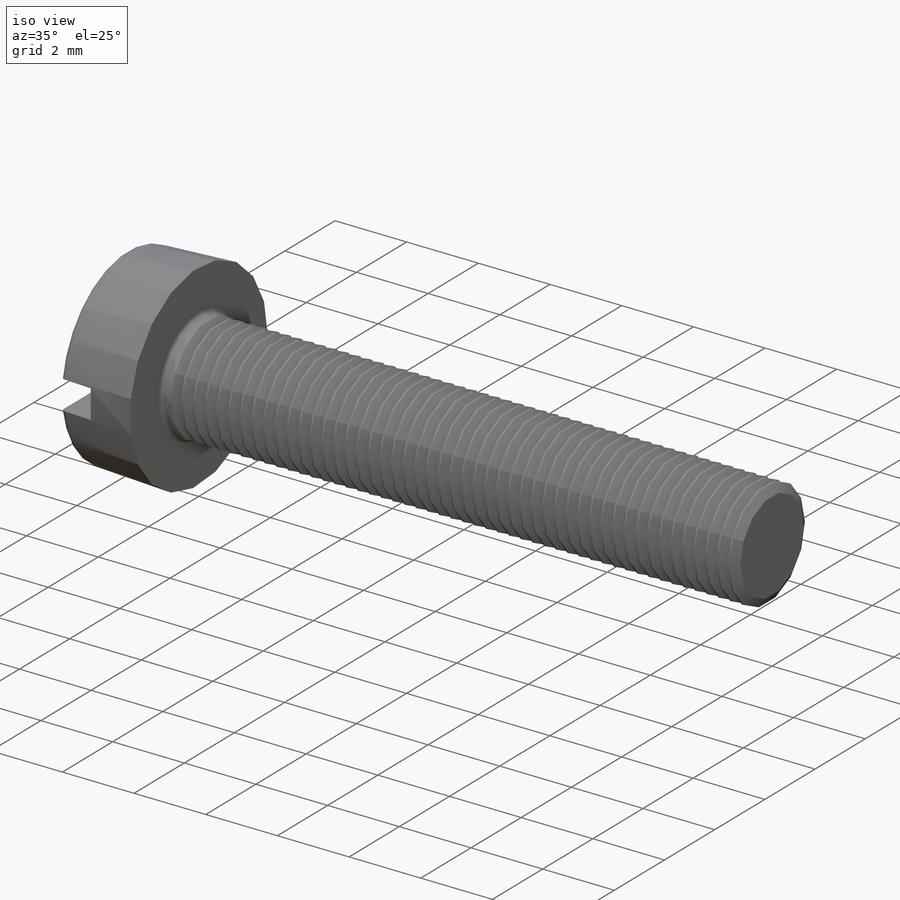
[diagram: iso view]
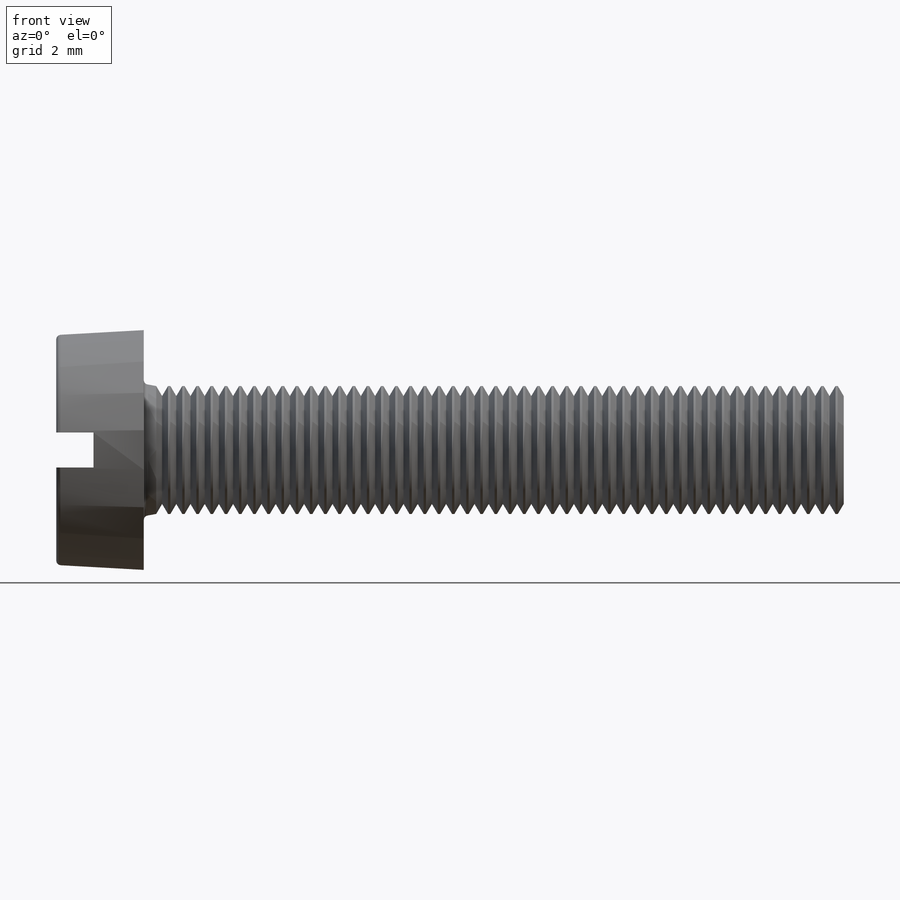
[diagram: front view]
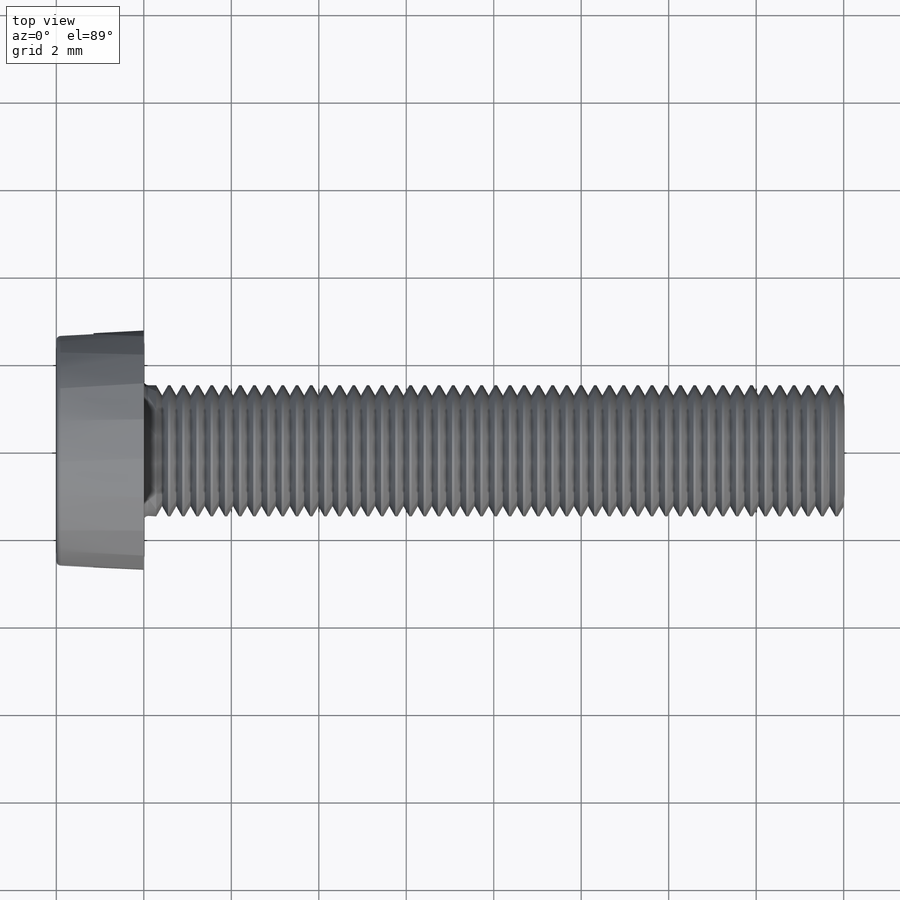
[diagram: top view]
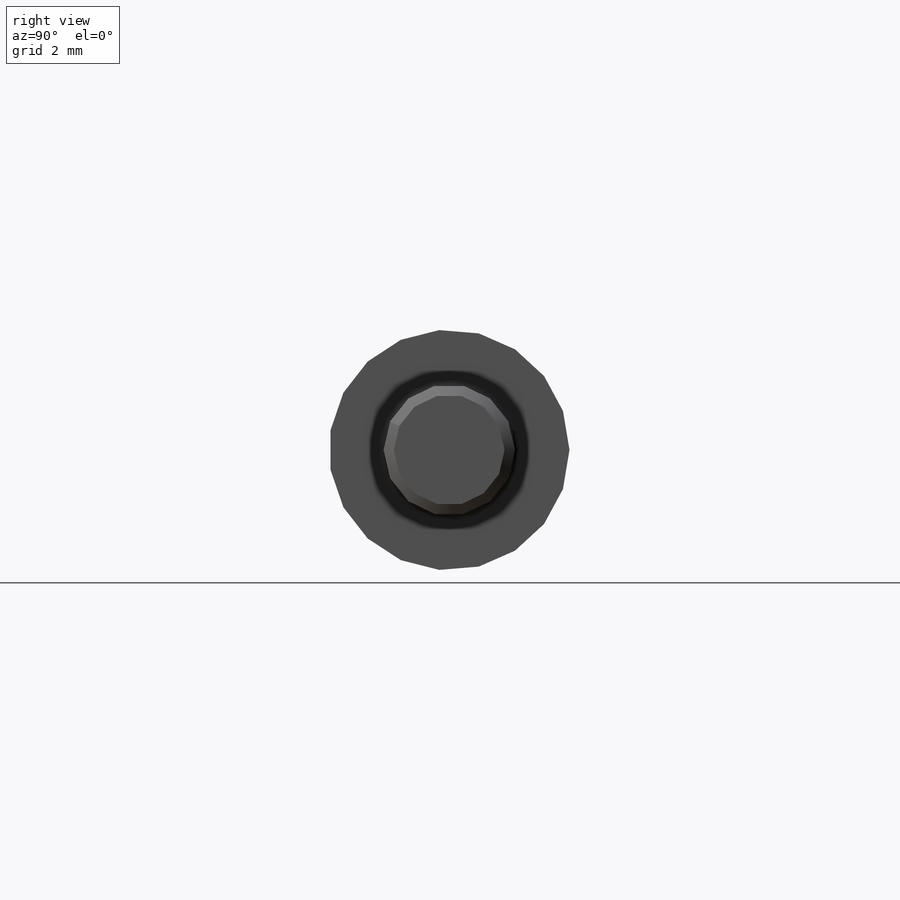
[diagram: right view]
SOLIDWORKS PART (.sldprt)
format: sldprt  version: not decoded by parser v0  size: 296,960 bytes
history: native  units: mm
features: sketch x5, extrude x2, material x1, plane x1, thread x1, cut_extrude x1, fillet x1, cut_revolve x1, pattern_linear x1 (+15 scaffold rows collapsed; 1 parser-record rows omitted)
feature tree (30):
  parser-record x1  (decoder bookkeeping rows leaked as tree rows — omitted from the tree; the rows remain in map.json)
  scaffold x15  (default folders/planes/origin — collapsed)
  material  "材质 <未指定>"
  plane  "Plane1"  Offset=2mm
  sketch  "Sketch2"  dims[dk=5.5mm]
  extrude  "BaseHead"  Depth=2mm k=2mm
  sketch  "Sketch3"  dims[d=3.0mm a=1.0mm]
  extrude  "BaseBody"  [1 undecoded]
  thread  "ThreadCosmetic1"  Diameter=16mm l=16mm  [1 undecoded]
  sketch  "Sketch4"  dims[c1.n=0.8mm c1.m=0.5mm c1.t=1.0mm c2.t=0.85mm c2.m=0.4mm]
  cut_extrude  "Slot"  [1 undecoded]
  fillet  "HeadFillet"  Radius=0.1mm r=0.1mm
  sketch  "Sketch1"  dims[c1.D1=~1.978448mm c1.b1=2.459mm c1.D3=5.0mm c1.b=38.5mm c1.x=1.25mm c1.D4=~2.481946mm c2.D1=3.5mm c2.D5=5.0mm c2.b=38.5mm c2.dd=5.0mm c3.b=25.0mm]
  sketch  "Sketch5"  dims[D1=3.0mm D2=0.2705mm]
  cut_revolve  "Cut-Revolve10"  Angle=360deg
  pattern_linear  "LPattern10"  Count1=49 Count2=1 Spacing1=0.3246mm Spacing2=50mm ConfigurationName=0mm CopiedFlag=1 PartNumberID=0mm
decode coverage: 10 of 12 modeling features carry decoded parameters
note: ~ marks probable driven/reference dimensions
note: 3 parameter values undecoded
note: suppression state not decoded; provenance and decode notes live in map.json
